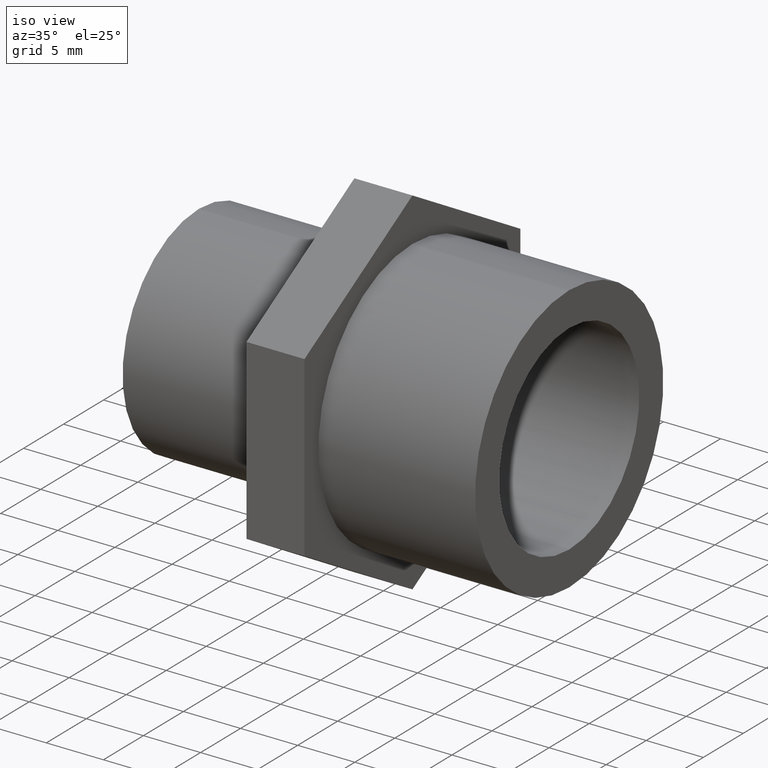
[diagram: clean part render]
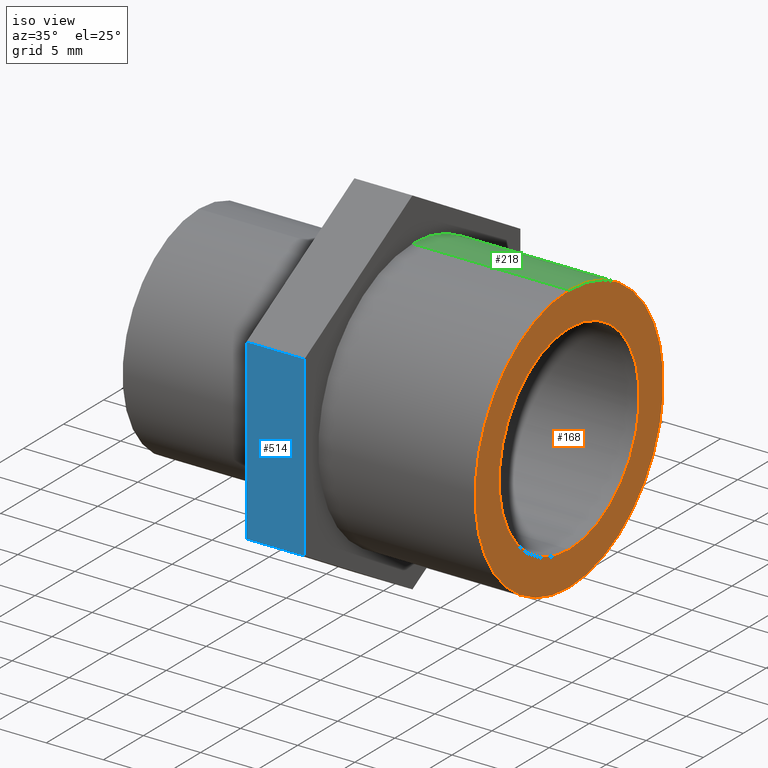
[diagram: same view with three faces highlighted in distinct colors, each labeled with its STEP entity id]
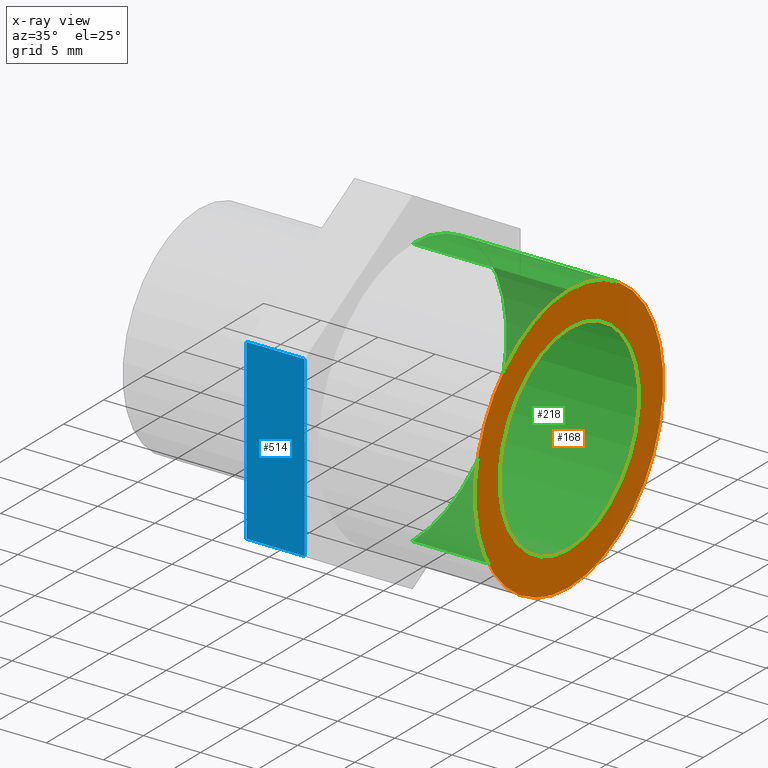
[diagram: x-ray of the same camera — body ghosted, the three highlighted faces saturated]
A machine part, iso view with three faces highlighted in distinct colors.
The next image is the same camera in x-ray (body ghosted, the three faces saturated) — at least one of them is partly hidden behind the body in this view.
Their STEP definitions:

[orange] entity #168 — the highlighted planar face has unit normal (1, 0, 0).
#11 = AXIS2_PLACEMENT_3D ( 'NONE', #18, #398, #78 ) ;
#18 = CARTESIAN_POINT ( 'NONE',  ( 0.6399999999999999000, 0.0000000000000000000, 0.0000000000000000000 ) ) ;
#23 = DIRECTION ( 'NONE',  ( 0.0000000000000000000, 0.0000000000000000000, -1.000000000000000000 ) ) ;
#28 = EDGE_LOOP ( 'NONE', ( #558, #434 ) ) ;
#58 = VERTEX_POINT ( 'NONE', #164 ) ;
#68 = AXIS2_PLACEMENT_3D ( 'NONE', #421, #125, #177 ) ;
#78 = DIRECTION ( 'NONE',  ( 0.0000000000000000000, 0.0000000000000000000, -1.000000000000000000 ) ) ;
#86 = CIRCLE ( 'NONE', #11, 0.3449999999999999200 ) ;
#125 = DIRECTION ( 'NONE',  ( 1.000000000000000000, 0.0000000000000000000, 0.0000000000000000000 ) ) ;
#139 = VERTEX_POINT ( 'NONE', #617 ) ;
#144 = EDGE_LOOP ( 'NONE', ( #161, #587 ) ) ;
#161 = ORIENTED_EDGE ( 'NONE', *, *, #316, .T. ) ;
#164 = CARTESIAN_POINT ( 'NONE',  ( 0.6399999999999999000, 5.670114680052246400E-017, -0.4630000000000000200 ) ) ;
#168 = ADVANCED_FACE ( 'NONE', ( #490, #550 ), #373, .T. ) ;
#177 = DIRECTION ( 'NONE',  ( 0.0000000000000000000, 0.0000000000000000000, -1.000000000000000000 ) ) ;
#230 = VERTEX_POINT ( 'NONE', #572 ) ;
#231 = DIRECTION ( 'NONE',  ( 1.000000000000000000, 0.0000000000000000000, 0.0000000000000000000 ) ) ;
#239 = AXIS2_PLACEMENT_3D ( 'NONE', #649, #355, #23 ) ;
#245 = CIRCLE ( 'NONE', #288, 0.3449999999999999200 ) ;
#288 = AXIS2_PLACEMENT_3D ( 'NONE', #521, #231, #571 ) ;
#316 = EDGE_CURVE ( 'NONE', #423, #58, #323, .T. ) ;
#323 = CIRCLE ( 'NONE', #68, 0.4630000000000000200 ) ;
#355 = DIRECTION ( 'NONE',  ( 1.000000000000000000, 0.0000000000000000000, 0.0000000000000000000 ) ) ;
#373 = PLANE ( 'NONE',  #459 ) ;
#384 = EDGE_CURVE ( 'NONE', #230, #139, #245, .T. ) ;
#398 = DIRECTION ( 'NONE',  ( 1.000000000000000000, 0.0000000000000000000, 0.0000000000000000000 ) ) ;
#401 = CARTESIAN_POINT ( 'NONE',  ( 0.6399999999999999000, 0.0000000000000000000, 0.0000000000000000000 ) ) ;
#411 = DIRECTION ( 'NONE',  ( 0.0000000000000000000, 0.0000000000000000000, -1.000000000000000000 ) ) ;
#421 = CARTESIAN_POINT ( 'NONE',  ( 0.6399999999999999000, 0.0000000000000000000, 0.0000000000000000000 ) ) ;
#423 = VERTEX_POINT ( 'NONE', #573 ) ;
#434 = ORIENTED_EDGE ( 'NONE', *, *, #552, .F. ) ;
#459 = AXIS2_PLACEMENT_3D ( 'NONE', #401, #559, #411 ) ;
#490 = FACE_BOUND ( 'NONE', #28, .T. ) ;
#521 = CARTESIAN_POINT ( 'NONE',  ( 0.6399999999999999000, 0.0000000000000000000, 0.0000000000000000000 ) ) ;
#550 = FACE_OUTER_BOUND ( 'NONE', #144, .T. ) ;
#552 = EDGE_CURVE ( 'NONE', #139, #230, #86, .T. ) ;
#558 = ORIENTED_EDGE ( 'NONE', *, *, #384, .F. ) ;
#559 = DIRECTION ( 'NONE',  ( 1.000000000000000000, 0.0000000000000000000, 0.0000000000000000000 ) ) ;
#571 = DIRECTION ( 'NONE',  ( 0.0000000000000000000, 0.0000000000000000000, -1.000000000000000000 ) ) ;
#572 = CARTESIAN_POINT ( 'NONE',  ( 0.6399999999999999000, 0.0000000000000000000, -0.3449999999999999200 ) ) ;
#573 = CARTESIAN_POINT ( 'NONE',  ( 0.6399999999999999000, 0.0000000000000000000, 0.4630000000000000200 ) ) ;
#587 = ORIENTED_EDGE ( 'NONE', *, *, #624, .T. ) ;
#617 = CARTESIAN_POINT ( 'NONE',  ( 0.6399999999999999000, 4.225031457058367800E-017, 0.3449999999999999200 ) ) ;
#622 = CIRCLE ( 'NONE', #239, 0.4630000000000000200 ) ;
#624 = EDGE_CURVE ( 'NONE', #58, #423, #622, .T. ) ;
#649 = CARTESIAN_POINT ( 'NONE',  ( 0.6399999999999999000, 0.0000000000000000000, 0.0000000000000000000 ) ) ;

[blue] entity #514 — the highlighted planar face has unit normal (0, -1, 0).
#15 = VECTOR ( 'NONE', #441, 39.37007874015748100 ) ;
#52 = AXIS2_PLACEMENT_3D ( 'NONE', #186, #291, #639 ) ;
#56 = EDGE_CURVE ( 'NONE', #386, #207, #170, .T. ) ;
#60 = VECTOR ( 'NONE', #663, 39.37007874015748100 ) ;
#77 = CARTESIAN_POINT ( 'NONE',  ( -0.1000000000000000100, -0.5312500000000000000, 0.3067173305069887400 ) ) ;
#91 = ORIENTED_EDGE ( 'NONE', *, *, #56, .T. ) ;
#100 = EDGE_LOOP ( 'NONE', ( #91, #167, #446, #510 ) ) ;
#106 = VECTOR ( 'NONE', #308, 39.37007874015748100 ) ;
#121 = CARTESIAN_POINT ( 'NONE',  ( -0.1000000000000000100, -0.5312500000000000000, -0.3067173305069886300 ) ) ;
#167 = ORIENTED_EDGE ( 'NONE', *, *, #293, .F. ) ;
#170 = LINE ( 'NONE', #319, #60 ) ;
#183 = PLANE ( 'NONE',  #52 ) ;
#186 = CARTESIAN_POINT ( 'NONE',  ( -0.1000000000000000100, -0.5312500000000000000, 0.3067173305069887400 ) ) ;
#205 = EDGE_CURVE ( 'NONE', #297, #329, #665, .T. ) ;
#207 = VERTEX_POINT ( 'NONE', #614 ) ;
#291 = DIRECTION ( 'NONE',  ( 0.0000000000000000000, -1.000000000000000000, 0.0000000000000000000 ) ) ;
#293 = EDGE_CURVE ( 'NONE', #329, #207, #374, .T. ) ;
#297 = VERTEX_POINT ( 'NONE', #304 ) ;
#304 = CARTESIAN_POINT ( 'NONE',  ( -0.1000000000000000100, -0.5312500000000000000, 0.3067173305069887400 ) ) ;
#308 = DIRECTION ( 'NONE',  ( 0.0000000000000000000, 0.0000000000000000000, -1.000000000000000000 ) ) ;
#319 = CARTESIAN_POINT ( 'NONE',  ( -0.1000000000000000100, -0.5312500000000000000, -0.3067173305069886300 ) ) ;
#329 = VERTEX_POINT ( 'NONE', #576 ) ;
#333 = FACE_OUTER_BOUND ( 'NONE', #100, .T. ) ;
#349 = EDGE_CURVE ( 'NONE', #297, #386, #368, .T. ) ;
#368 = LINE ( 'NONE', #562, #106 ) ;
#374 = LINE ( 'NONE', #499, #391 ) ;
#386 = VERTEX_POINT ( 'NONE', #121 ) ;
#391 = VECTOR ( 'NONE', #450, 39.37007874015748100 ) ;
#441 = DIRECTION ( 'NONE',  ( 1.000000000000000000, 0.0000000000000000000, 0.0000000000000000000 ) ) ;
#446 = ORIENTED_EDGE ( 'NONE', *, *, #205, .F. ) ;
#450 = DIRECTION ( 'NONE',  ( 0.0000000000000000000, 0.0000000000000000000, -1.000000000000000000 ) ) ;
#499 = CARTESIAN_POINT ( 'NONE',  ( 0.1000000000000000100, -0.5312500000000000000, 0.3067173305069887400 ) ) ;
#510 = ORIENTED_EDGE ( 'NONE', *, *, #349, .T. ) ;
#514 = ADVANCED_FACE ( 'NONE', ( #333 ), #183, .T. ) ;
#562 = CARTESIAN_POINT ( 'NONE',  ( -0.1000000000000000100, -0.5312500000000000000, 0.3067173305069887400 ) ) ;
#576 = CARTESIAN_POINT ( 'NONE',  ( 0.1000000000000000100, -0.5312500000000000000, 0.3067173305069887400 ) ) ;
#614 = CARTESIAN_POINT ( 'NONE',  ( 0.1000000000000000100, -0.5312500000000000000, -0.3067173305069886300 ) ) ;
#639 = DIRECTION ( 'NONE',  ( 0.0000000000000000000, -0.0000000000000000000, -1.000000000000000000 ) ) ;
#663 = DIRECTION ( 'NONE',  ( 1.000000000000000000, 0.0000000000000000000, 0.0000000000000000000 ) ) ;
#665 = LINE ( 'NONE', #77, #15 ) ;

[green] entity #218 — the highlighted cylindrical surface (partial cylindrical patch) has radius 11.7602 mm, axis along (-1, -0, -0).
#6 = FACE_OUTER_BOUND ( 'NONE', #409, .T. ) ;
#8 = VECTOR ( 'NONE', #425, 39.37007874015748100 ) ;
#23 = DIRECTION ( 'NONE',  ( 0.0000000000000000000, 0.0000000000000000000, -1.000000000000000000 ) ) ;
#34 = ORIENTED_EDGE ( 'NONE', *, *, #517, .T. ) ;
#41 = CARTESIAN_POINT ( 'NONE',  ( 0.6399999999999999000, 0.0000000000000000000, 0.0000000000000000000 ) ) ;
#58 = VERTEX_POINT ( 'NONE', #164 ) ;
#76 = CARTESIAN_POINT ( 'NONE',  ( 0.1000000000000000200, 5.670114680052246400E-017, -0.4630000000000000200 ) ) ;
#87 = VERTEX_POINT ( 'NONE', #255 ) ;
#130 = LINE ( 'NONE', #232, #8 ) ;
#164 = CARTESIAN_POINT ( 'NONE',  ( 0.6399999999999999000, 5.670114680052246400E-017, -0.4630000000000000200 ) ) ;
#204 = LINE ( 'NONE', #528, #534 ) ;
#210 = DIRECTION ( 'NONE',  ( 0.0000000000000000000, 0.0000000000000000000, -1.000000000000000000 ) ) ;
#211 = ORIENTED_EDGE ( 'NONE', *, *, #220, .F. ) ;
#218 = ADVANCED_FACE ( 'NONE', ( #6 ), #659, .T. ) ;
#220 = EDGE_CURVE ( 'NONE', #87, #519, #462, .T. ) ;
#232 = CARTESIAN_POINT ( 'NONE',  ( 0.6399999999999999000, 0.0000000000000000000, 0.4630000000000000200 ) ) ;
#234 = ORIENTED_EDGE ( 'NONE', *, *, #419, .F. ) ;
#239 = AXIS2_PLACEMENT_3D ( 'NONE', #649, #355, #23 ) ;
#255 = CARTESIAN_POINT ( 'NONE',  ( 0.1000000000000000200, 0.0000000000000000000, 0.4630000000000000200 ) ) ;
#264 = DIRECTION ( 'NONE',  ( -1.000000000000000000, -0.0000000000000000000, -0.0000000000000000000 ) ) ;
#269 = CARTESIAN_POINT ( 'NONE',  ( 0.1000000000000000200, 0.0000000000000000000, 0.0000000000000000000 ) ) ;
#301 = ORIENTED_EDGE ( 'NONE', *, *, #624, .F. ) ;
#355 = DIRECTION ( 'NONE',  ( 1.000000000000000000, 0.0000000000000000000, 0.0000000000000000000 ) ) ;
#409 = EDGE_LOOP ( 'NONE', ( #301, #34, #211, #234 ) ) ;
#419 = EDGE_CURVE ( 'NONE', #423, #87, #130, .T. ) ;
#423 = VERTEX_POINT ( 'NONE', #573 ) ;
#425 = DIRECTION ( 'NONE',  ( -1.000000000000000000, -0.0000000000000000000, -0.0000000000000000000 ) ) ;
#433 = DIRECTION ( 'NONE',  ( -1.000000000000000000, -0.0000000000000000000, -0.0000000000000000000 ) ) ;
#462 = CIRCLE ( 'NONE', #525, 0.4630000000000000200 ) ;
#517 = EDGE_CURVE ( 'NONE', #58, #519, #204, .T. ) ;
#519 = VERTEX_POINT ( 'NONE', #76 ) ;
#525 = AXIS2_PLACEMENT_3D ( 'NONE', #269, #264, #210 ) ;
#528 = CARTESIAN_POINT ( 'NONE',  ( 0.6399999999999999000, 5.670114680052246400E-017, -0.4630000000000000200 ) ) ;
#534 = VECTOR ( 'NONE', #433, 39.37007874015748100 ) ;
#561 = AXIS2_PLACEMENT_3D ( 'NONE', #41, #608, #597 ) ;
#573 = CARTESIAN_POINT ( 'NONE',  ( 0.6399999999999999000, 0.0000000000000000000, 0.4630000000000000200 ) ) ;
#597 = DIRECTION ( 'NONE',  ( 0.0000000000000000000, 0.0000000000000000000, 1.000000000000000000 ) ) ;
#608 = DIRECTION ( 'NONE',  ( -1.000000000000000000, -0.0000000000000000000, -0.0000000000000000000 ) ) ;
#622 = CIRCLE ( 'NONE', #239, 0.4630000000000000200 ) ;
#624 = EDGE_CURVE ( 'NONE', #58, #423, #622, .T. ) ;
#649 = CARTESIAN_POINT ( 'NONE',  ( 0.6399999999999999000, 0.0000000000000000000, 0.0000000000000000000 ) ) ;
#659 = CYLINDRICAL_SURFACE ( 'NONE', #561, 0.4630000000000000200 ) ;